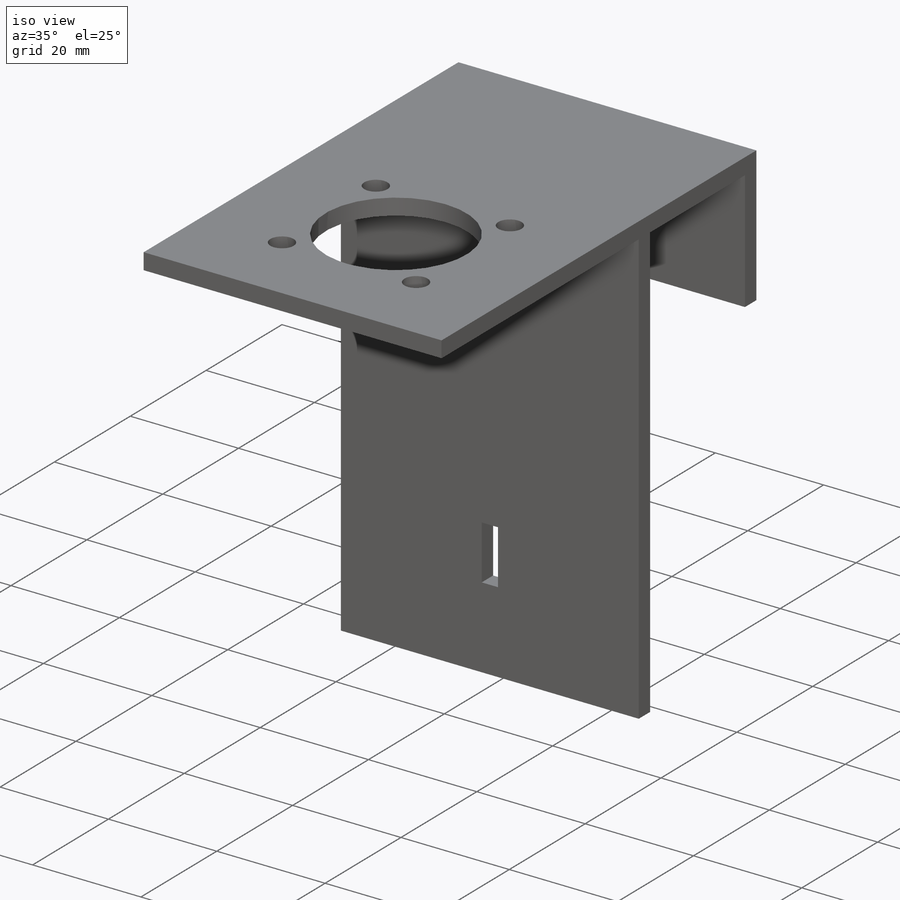
[diagram: iso view]
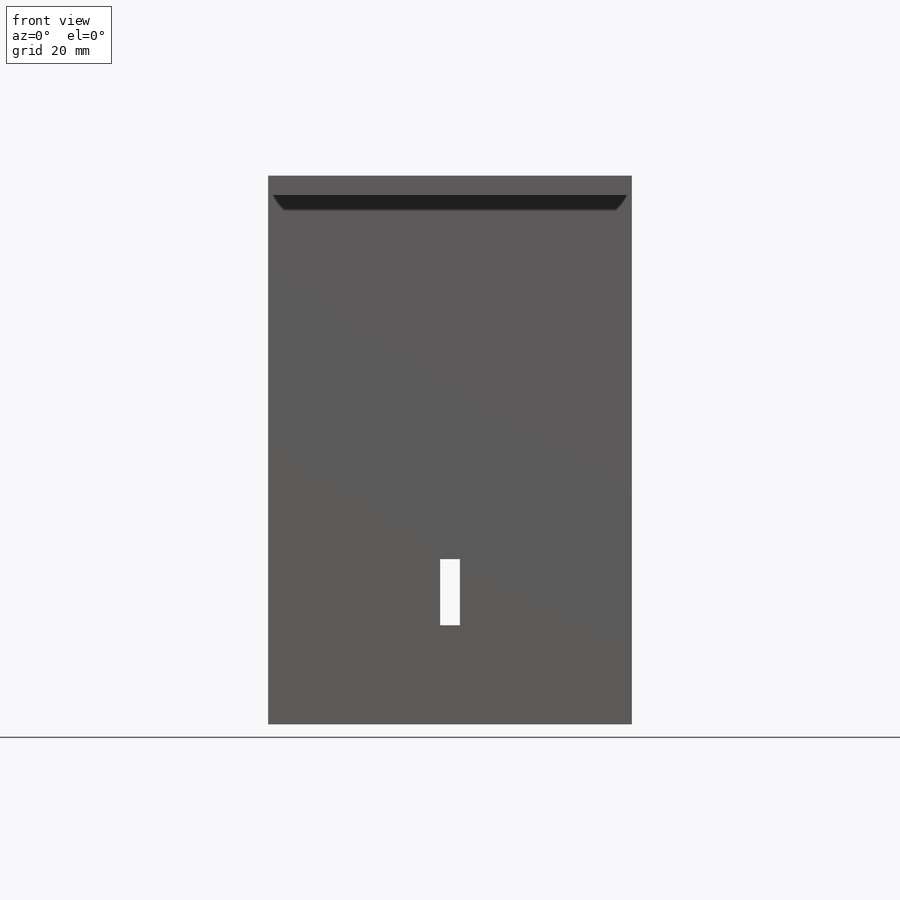
[diagram: front view]
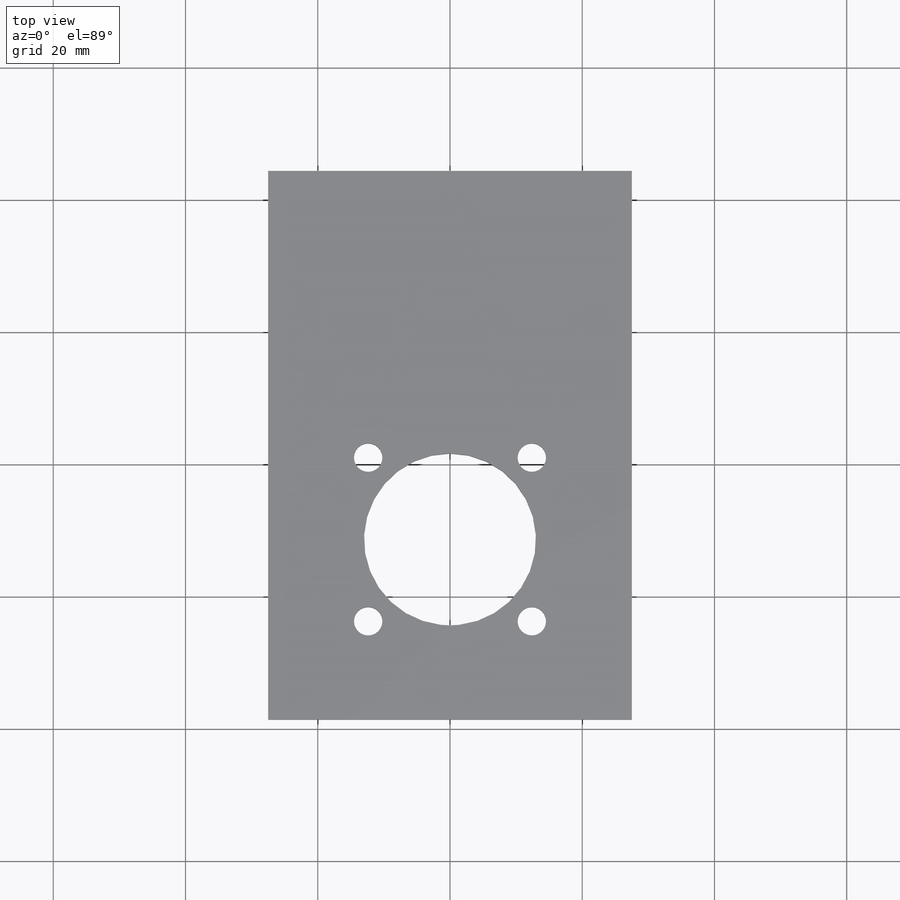
[diagram: top view]
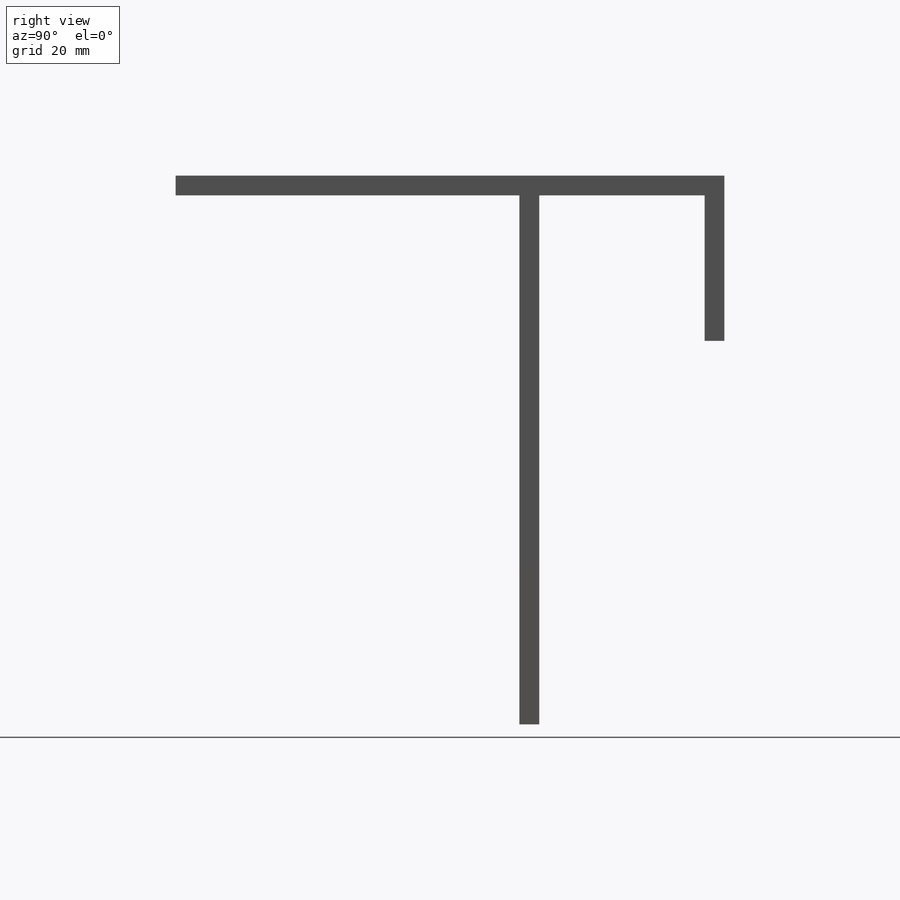
[diagram: right view]
SOLIDWORKS PART (.sldprt)
format: sldprt  version: not decoded by parser v0  size: 203,264 bytes
history: native  units: mm
features: sketch x4, extrude x3, material x1, cut_extrude x1 (+13 scaffold rows collapsed)
feature tree (22):
  scaffold x13  (default folders/planes/origin — collapsed)
  material  "Material <not specified>"
  sketch  "Sketch1"  dims[D4=26.0mm D6=35.0mm D7=4.3mm D1=55.0mm D2=80.0mm D3=25.0mm D9=~10.243932mm D5=4.5mm D8=4.0]
  extrude  "Boss-Extrude2"  Depth=3mm
  sketch  "Sketch2"  dims[D1=25.0mm D2=3.0mm D3=55.0mm]
  extrude  "Boss-Extrude3"  Depth=80mm
  sketch  "Sketch3"  dims[c1.D1=60.0mm c1.D2=10.0mm c1.D3=~1.598454mm c2.D3=90.0deg c3.D3=3.0mm]
  cut_extrude  "Cut-Extrude1"  Depth=80mm
  sketch  "Sketch4"  dims[D1=55.0mm D2=25.0mm]
  extrude  "Boss-Extrude4"  Depth=3mm
decode coverage: 8 of 8 modeling features carry decoded parameters
note: ~ marks probable driven/reference dimensions
note: suppression state not decoded; provenance and decode notes live in map.json
